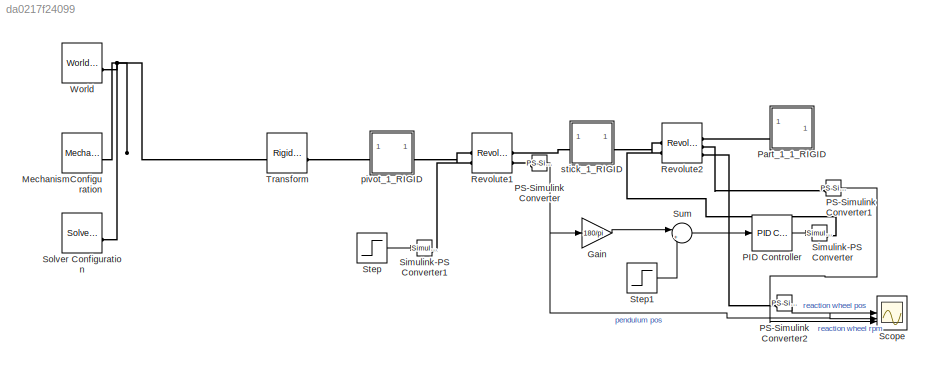
MODEL slx_da0217f24099
KIND model
CONFIG AbsTol = auto
CONFIG EnableMultiTasking = off
CONFIG FixedStep = auto
CONFIG MaxStep = auto
CONFIG MinStep = auto
CONFIG RelTol = 1e-3
CONFIG SampleTimeConstraint = Unconstrained
CONFIG SolverName = VariableStepAuto
CONFIG StartTime = 0.0
CONFIG StopTime = 5
WORKSPACE source: external: MATLAB File  (data not in archive)
BLOCK [Gain] Gain
  Gain = 180/pi
BLOCK [Reference] MechanismConfiguration  REF=sm_lib/Utilities/Mechanism
Configuration
  SourceBlock = sm_lib/Utilities/Mechanism\nConfiguration
  SourceType = Mechanism\nConfiguration
BLOCK [Reference] PID Controller  REF=slpidlib/PID Controller
  LibrarySourceBlock = simulink/Continuous/PID Controller
  SourceBlock = slpidlib/PID Controller
  SourceType = PID 1dof
BLOCK [Reference] PS-Simulink Converter  REF=nesl_utility/PS-Simulink
Converter
  SourceBlock = nesl_utility/PS-Simulink\nConverter
  SourceType = PS-Simulink\nConverter
BLOCK [Reference] PS-Simulink Converter1  REF=nesl_utility/PS-Simulink
Converter
  SourceBlock = nesl_utility/PS-Simulink\nConverter
  SourceType = PS-Simulink\nConverter
BLOCK [Reference] PS-Simulink Converter2  REF=nesl_utility/PS-Simulink
Converter
  SourceBlock = nesl_utility/PS-Simulink\nConverter
  SourceType = PS-Simulink\nConverter
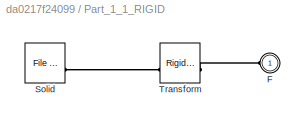
BLOCK [SubSystem] Part_1_1_RIGID
BLOCK [PMIOPort] Part_1_1_RIGID/F
  Side = Left
BLOCK [Reference] Part_1_1_RIGID/Solid  REF=sm_lib/Body Elements/File Solid
  SourceBlock = sm_lib/Body Elements/File Solid
  SourceType = File Solid
BLOCK [Reference] Part_1_1_RIGID/Transform  REF=sm_lib/Frames and
Transforms/Rigid
Transform
  SourceBlock = sm_lib/Frames and\nTransforms/Rigid\nTransform
  SourceType = Rigid\nTransform
BLOCK [Reference] Revolute1  REF=sm_lib/Joints/Revolute Joint
  SourceBlock = sm_lib/Joints/Revolute Joint
  SourceType = Revolute Joint
BLOCK [Reference] Revolute2  REF=sm_lib/Joints/Revolute Joint
  SourceBlock = sm_lib/Joints/Revolute Joint
  SourceType = Revolute Joint
BLOCK [Scope] Scope
  Floating = off
  NumInputPorts = 3
  ScopeSpecificationString = Simulink.scopes.TimeScopeBlockCfg('CurrentConfiguration', extmgr.ConfigurationSet(extmgr.Configuration('Core','General UI',true),extmgr.Configuration('Core','Source UI',true),extmgr.Configuration('Sources','WiredSimulink',true),extmgr.Configuration('Visuals','Time Domain',true,'SerializedDisplays',{struct('MinYLimReal','-18745.51209','MaxYLimReal','2446.92393','YLabelReal','','MinYLimMag','   0.00...<+1400ch>
BLOCK [Reference] Simulink-PS Converter  REF=nesl_utility/Simulink-PS
Converter
  SourceBlock = nesl_utility/Simulink-PS\nConverter
  SourceType = Simulink-PS\nConverter
BLOCK [Reference] Simulink-PS Converter1  REF=nesl_utility/Simulink-PS
Converter
  SourceBlock = nesl_utility/Simulink-PS\nConverter
  SourceType = Simulink-PS\nConverter
BLOCK [Reference] Solver Configuration  REF=nesl_utility/Solver
Configuration
  SourceBlock = nesl_utility/Solver\nConfiguration
  SourceType = Solver\nConfiguration
BLOCK [Step] Step
  After = 0.1
  SampleTime = 0
  Time = 0.01
BLOCK [Step] Step1
  SampleTime = 0
  Time = 0.001
BLOCK [Sum] Sum
  Inputs = |++
BLOCK [Reference] Transform  REF=sm_lib/Frames and
Transforms/Rigid
Transform
  SourceBlock = sm_lib/Frames and\nTransforms/Rigid\nTransform
  SourceType = Rigid\nTransform
BLOCK [Reference] World  REF=sm_lib/Frames and
Transforms/World Frame
  SourceBlock = sm_lib/Frames and\nTransforms/World Frame
  SourceType = World Frame
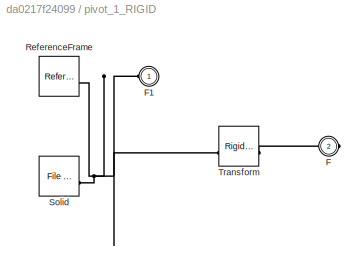
BLOCK [SubSystem] pivot_1_RIGID
BLOCK [PMIOPort] pivot_1_RIGID/F
  Port = 2
  Side = Right
BLOCK [PMIOPort] pivot_1_RIGID/F1
  Side = Left
BLOCK [Reference] pivot_1_RIGID/ReferenceFrame  REF=sm_lib/Frames and
Transforms/Reference
Frame
  SourceBlock = sm_lib/Frames and\nTransforms/Reference\nFrame
  SourceType = Reference\nFrame
BLOCK [Reference] pivot_1_RIGID/Solid  REF=sm_lib/Body Elements/File Solid
  SourceBlock = sm_lib/Body Elements/File Solid
  SourceType = File Solid
BLOCK [Reference] pivot_1_RIGID/Transform  REF=sm_lib/Frames and
Transforms/Rigid
Transform
  SourceBlock = sm_lib/Frames and\nTransforms/Rigid\nTransform
  SourceType = Rigid\nTransform
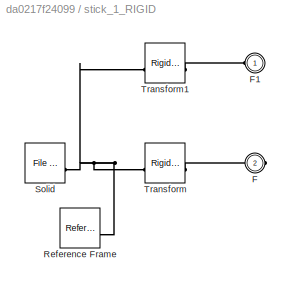
BLOCK [SubSystem] stick_1_RIGID
BLOCK [PMIOPort] stick_1_RIGID/F
  Port = 2
  Side = Right
BLOCK [PMIOPort] stick_1_RIGID/F1
  Side = Left
BLOCK [Reference] stick_1_RIGID/Reference Frame  REF=sm_lib/Frames and
Transforms/Reference
Frame
  SourceBlock = sm_lib/Frames and\nTransforms/Reference\nFrame
  SourceType = Reference\nFrame
BLOCK [Reference] stick_1_RIGID/Solid  REF=sm_lib/Body Elements/File Solid
  SourceBlock = sm_lib/Body Elements/File Solid
  SourceType = File Solid
BLOCK [Reference] stick_1_RIGID/Transform  REF=sm_lib/Frames and
Transforms/Rigid
Transform
  SourceBlock = sm_lib/Frames and\nTransforms/Rigid\nTransform
  SourceType = Rigid\nTransform
BLOCK [Reference] stick_1_RIGID/Transform1  REF=sm_lib/Frames and
Transforms/Rigid
Transform
  SourceBlock = sm_lib/Frames and\nTransforms/Rigid\nTransform
  SourceType = Rigid\nTransform
LINE Gain:1 -> Sum:1
LINE PID Controller:1 -> Simulink-PS Converter:1
LINE PS-Simulink Converter1:1 -> Scope:3
LINE PS-Simulink Converter2:1 -> Scope:1
NET PS-Simulink Converter:1 -> Gain:1, Scope:2
LINE Step1:1 -> Sum:2
LINE Step:1 -> Simulink-PS Converter1:1
LINE Sum:1 -> PID Controller:1
PNET net1: MechanismConfiguration:RConn1 -- Solver Configuration:RConn1 -- Transform:LConn1 -- World:RConn1
PLINE PS-Simulink Converter1:LConn1 -- Revolute2:RConn2
PLINE PS-Simulink Converter2:LConn1 -- Revolute2:RConn3
PLINE PS-Simulink Converter:LConn1 -- Revolute1:RConn2
PLINE Part_1_1_RIGID/F:RConn1 -- Part_1_1_RIGID/Transform:RConn1
PLINE Part_1_1_RIGID/Solid:RConn1 -- Part_1_1_RIGID/Transform:LConn1
PLINE Part_1_1_RIGID:LConn1 -- Revolute2:RConn1
PLINE Revolute1:LConn1 -- pivot_1_RIGID:RConn1
PLINE Revolute1:LConn2 -- Simulink-PS Converter1:RConn1
PLINE Revolute1:RConn1 -- stick_1_RIGID:LConn1
PLINE Revolute2:LConn1 -- stick_1_RIGID:RConn1
PLINE Revolute2:LConn2 -- Simulink-PS Converter:RConn1
PLINE Transform:RConn1 -- pivot_1_RIGID:LConn1
PNET net2: pivot_1_RIGID/F1:RConn1 -- pivot_1_RIGID/ReferenceFrame:RConn1 -- pivot_1_RIGID/Solid:RConn1 -- pivot_1_RIGID/Transform:LConn1
PLINE pivot_1_RIGID/F:RConn1 -- pivot_1_RIGID/Transform:RConn1
PLINE stick_1_RIGID/F1:RConn1 -- stick_1_RIGID/Transform1:RConn1
PLINE stick_1_RIGID/F:RConn1 -- stick_1_RIGID/Transform:RConn1
PNET net3: stick_1_RIGID/Reference Frame:RConn1 -- stick_1_RIGID/Solid:RConn1 -- stick_1_RIGID/Transform1:LConn1 -- stick_1_RIGID/Transform:LConn1
note: NET lines group one-source signal fan-out (src -> all destinations, sorted); 1:1 wires keep LINE; PNET lines group multi-terminal physical nets as a canonical sorted terminal list (undirected conserving connections); 2-terminal nets keep the pairwise PLINE form
